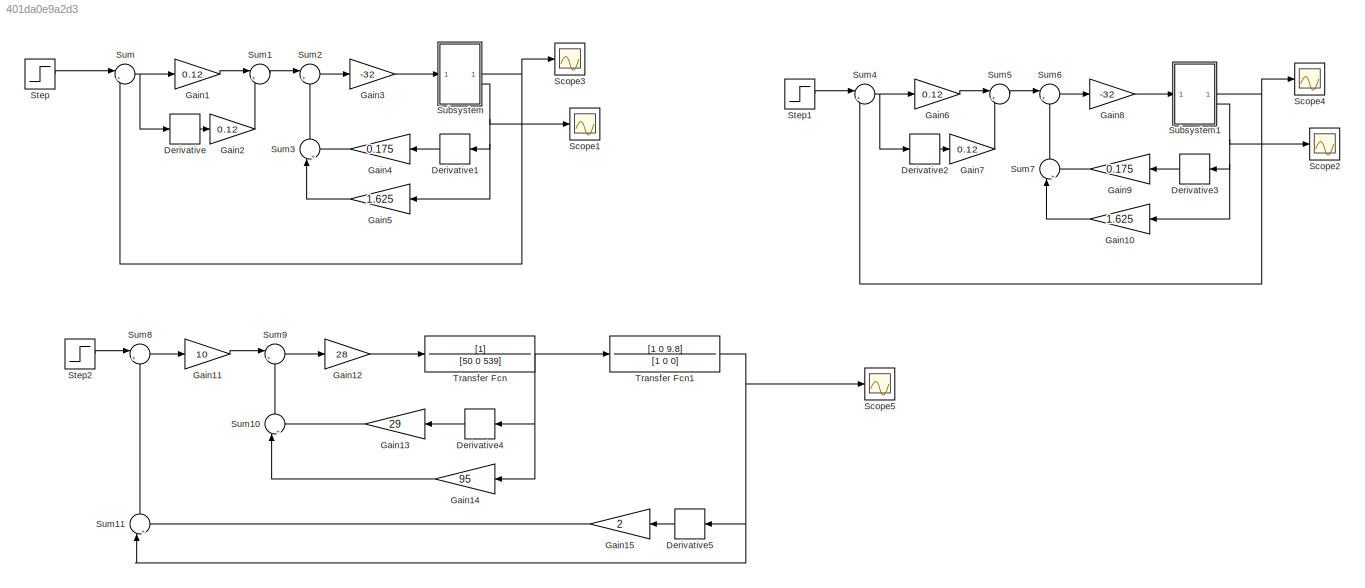
MODEL slx_401da0e9a2d3
KIND model
CONFIG AbsTol = auto
CONFIG EnableMultiTasking = off
CONFIG FixedStep = auto
CONFIG MaxStep = auto
CONFIG MinStep = auto
CONFIG RelTol = 1e-3
CONFIG SampleTimeConstraint = Unconstrained
CONFIG SolverName = VariableStepAuto
CONFIG StartTime = 0.0
CONFIG StopTime = 10.0
BLOCK [Derivative] Derivative
BLOCK [Derivative] Derivative1
BLOCK [Derivative] Derivative2
BLOCK [Derivative] Derivative3
BLOCK [Derivative] Derivative4
BLOCK [Derivative] Derivative5
BLOCK [Gain] Gain1
  Gain = 0.12
BLOCK [Gain] Gain10
  Gain = 1.625
BLOCK [Gain] Gain11
  Gain = 10
BLOCK [Gain] Gain12
  Gain = 28
BLOCK [Gain] Gain13
  Gain = 29
BLOCK [Gain] Gain14
  Gain = 95
BLOCK [Gain] Gain15
  Gain = 2
BLOCK [Gain] Gain2
  Gain = 0.12
BLOCK [Gain] Gain3
  Gain = -32
BLOCK [Gain] Gain4
  Gain = 0.175
BLOCK [Gain] Gain5
  Gain = 1.625
BLOCK [Gain] Gain6
  Gain = 0.12
BLOCK [Gain] Gain7
  Gain = 0.12
BLOCK [Gain] Gain8
  Gain = -32
BLOCK [Gain] Gain9
  Gain = 0.175
BLOCK [Scope] Scope1
  Floating = off
  NumInputPorts = 1
  ScopeSpecificationString = Simulink.scopes.TimeScopeBlockCfg('CurrentConfiguration', extmgr.ConfigurationSet(extmgr.Configuration('Core','General UI',true),extmgr.Configuration('Core','Source UI',true),extmgr.Configuration('Sources','WiredSimulink',true),extmgr.Configuration('Visuals','Time Domain',true,'SerializedDisplays',{struct('MinYLimReal','-0.0067','MaxYLimReal','0.01478','YLabelReal','','MinYLimMag','0.00000','MaxYL...<+1396ch>
BLOCK [Scope] Scope2
  Floating = off
  NumInputPorts = 1
  ScopeSpecificationString = Simulink.scopes.TimeScopeBlockCfg('CurrentConfiguration', extmgr.ConfigurationSet(extmgr.Configuration('Core','General UI',true),extmgr.Configuration('Core','Source UI',true),extmgr.Configuration('Sources','WiredSimulink',true,'DataLoggingVariableName','ScopeData1'),extmgr.Configuration('Visuals','Time Domain',true,'SerializedDisplays',{struct('MinYLimReal','-0.0067','MaxYLimReal','0.01478','YLabe...<+1450ch>
BLOCK [Scope] Scope3
  Floating = off
  NumInputPorts = 1
  ScopeSpecificationString = Simulink.scopes.TimeScopeBlockCfg('CurrentConfiguration', extmgr.ConfigurationSet(extmgr.Configuration('Core','General UI',true),extmgr.Configuration('Core','Source UI',true),extmgr.Configuration('Sources','WiredSimulink',true,'DataLoggingVariableName','ScopeData3'),extmgr.Configuration('Visuals','Time Domain',true,'SerializedDisplays',{struct('MinYLimReal','-0.01796','MaxYLimReal','0.12869','YLab...<+1437ch>
BLOCK [Scope] Scope4
  Floating = off
  NumInputPorts = 1
  ScopeSpecificationString = Simulink.scopes.TimeScopeBlockCfg('CurrentConfiguration', extmgr.ConfigurationSet(extmgr.Configuration('Core','General UI',true),extmgr.Configuration('Core','Source UI',true),extmgr.Configuration('Sources','WiredSimulink',true,'DataLoggingVariableName','ScopeData2'),extmgr.Configuration('Visuals','Time Domain',true,'SerializedDisplays',{struct('MinYLimReal','-0.01796','MaxYLimReal','0.12869','YLab...<+1464ch>
BLOCK [Scope] Scope5
  Floating = off
  NumInputPorts = 1
  ScopeSpecificationString = Simulink.scopes.TimeScopeBlockCfg('CurrentConfiguration', extmgr.ConfigurationSet(extmgr.Configuration('Core','General UI',true),extmgr.Configuration('Core','Source UI',true),extmgr.Configuration('Sources','WiredSimulink',true,'DataLoggingVariableName','ScopeData1'),extmgr.Configuration('Visuals','Time Domain',true,'SerializedDisplays',{struct('MinYLimReal','-0.01247','MaxYLimReal','0.11226','YLab...<+1477ch>
BLOCK [Step] Step
  After = 0.1
  SampleTime = 0
BLOCK [Step] Step1
  After = 0.1
  SampleTime = 0
BLOCK [Step] Step2
  After = 0.1
  SampleTime = 0
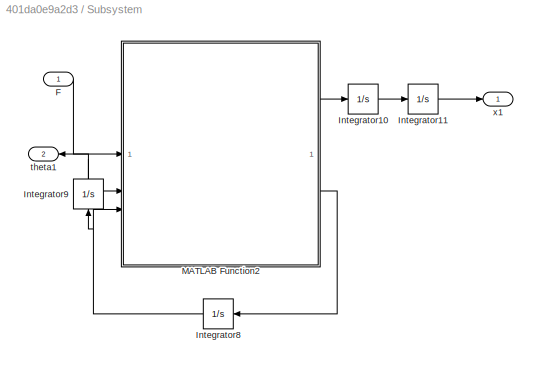
BLOCK [SubSystem] Subsystem
BLOCK [Inport] Subsystem/F
BLOCK [Integrator] Subsystem/Integrator10
BLOCK [Integrator] Subsystem/Integrator11
BLOCK [Integrator] Subsystem/Integrator8
BLOCK [Integrator] Subsystem/Integrator9
  NameLocation = left
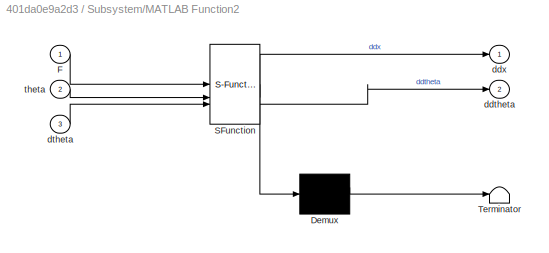
BLOCK [SubSystem] Subsystem/MATLAB Function2
  ErrorFcn = Stateflow.Translate.translate
  PermitHierarchicalResolution = ExplicitOnly
  SFBlockType = MATLAB Function
  TreatAsAtomicUnit = on
BLOCK [Demux] Subsystem/MATLAB Function2/ Demux 
  Outputs = 1
BLOCK [S-Function] Subsystem/MATLAB Function2/ SFunction 
  EnableBusSupport = on
  FunctionName = sf_sfun
  PortCounts = [3 3]
  SFcnIsStateOwnerBlock = off
  SFunctionDeploymentMode = off
  Tag = Stateflow S-Function 3
BLOCK [Terminator] Subsystem/MATLAB Function2/ Terminator 
BLOCK [Inport] Subsystem/MATLAB Function2/F
BLOCK [Outport] Subsystem/MATLAB Function2/ddtheta
  Port = 2
BLOCK [Outport] Subsystem/MATLAB Function2/ddx
BLOCK [Inport] Subsystem/MATLAB Function2/dtheta
  Port = 3
BLOCK [Inport] Subsystem/MATLAB Function2/theta
  Port = 2
BLOCK [Outport] Subsystem/theta1
  Port = 2
BLOCK [Outport] Subsystem/x1
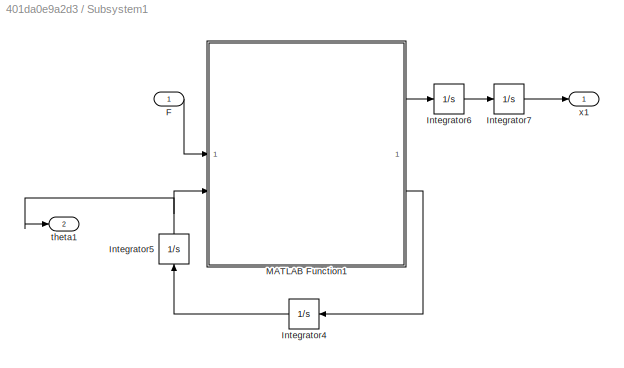
BLOCK [SubSystem] Subsystem1
BLOCK [Inport] Subsystem1/F
BLOCK [Integrator] Subsystem1/Integrator4
BLOCK [Integrator] Subsystem1/Integrator5
  NameLocation = left
BLOCK [Integrator] Subsystem1/Integrator6
BLOCK [Integrator] Subsystem1/Integrator7
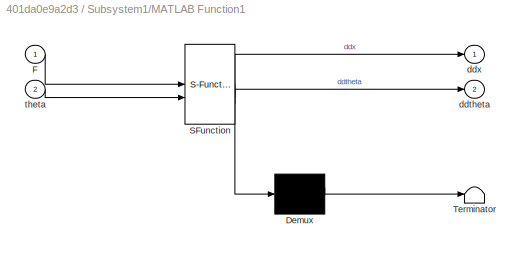
BLOCK [SubSystem] Subsystem1/MATLAB Function1
  ErrorFcn = Stateflow.Translate.translate
  PermitHierarchicalResolution = ExplicitOnly
  SFBlockType = MATLAB Function
  TreatAsAtomicUnit = on
BLOCK [Demux] Subsystem1/MATLAB Function1/ Demux 
  Outputs = 1
BLOCK [S-Function] Subsystem1/MATLAB Function1/ SFunction 
  EnableBusSupport = on
  FunctionName = sf_sfun
  PortCounts = [2 3]
  SFcnIsStateOwnerBlock = off
  SFunctionDeploymentMode = off
  Tag = Stateflow S-Function 1
BLOCK [Terminator] Subsystem1/MATLAB Function1/ Terminator 
BLOCK [Inport] Subsystem1/MATLAB Function1/F
BLOCK [Outport] Subsystem1/MATLAB Function1/ddtheta
  Port = 2
BLOCK [Outport] Subsystem1/MATLAB Function1/ddx
BLOCK [Inport] Subsystem1/MATLAB Function1/theta
  Port = 2
BLOCK [Outport] Subsystem1/theta1
  Port = 2
BLOCK [Outport] Subsystem1/x1
BLOCK [Sum] Sum
  Inputs = |+-
BLOCK [Sum] Sum1
  Inputs = |++
BLOCK [Sum] Sum10
  Inputs = |++
  NameLocation = right
BLOCK [Sum] Sum11
  Inputs = |++
  NameLocation = right
BLOCK [Sum] Sum2
  Inputs = |+-
BLOCK [Sum] Sum3
  Inputs = |++
  NameLocation = right
BLOCK [Sum] Sum4
  Inputs = |+-
BLOCK [Sum] Sum5
  Inputs = |++
BLOCK [Sum] Sum6
  Inputs = |+-
BLOCK [Sum] Sum7
  Inputs = |++
  NameLocation = right
BLOCK [Sum] Sum8
  Inputs = |+-
BLOCK [Sum] Sum9
  Inputs = |+-
BLOCK [TransferFcn] Transfer Fcn
  Denominator = [50 0 539]
BLOCK [TransferFcn] Transfer Fcn1
  Denominator = [1 0 0]
  Numerator = [1 0 9.8]
LINE Derivative1:1 -> Gain4:1
LINE Derivative2:1 -> Gain7:1
LINE Derivative3:1 -> Gain9:1
LINE Derivative4:1 -> Gain13:1
LINE Derivative5:1 -> Gain15:1
LINE Derivative:1 -> Gain2:1
LINE Gain10:1 -> Sum7:1
LINE Gain11:1 -> Sum9:1
LINE Gain12:1 -> Transfer Fcn:1
LINE Gain13:1 -> Sum10:2
LINE Gain14:1 -> Sum10:1
LINE Gain15:1 -> Sum11:2
LINE Gain1:1 -> Sum1:1
LINE Gain2:1 -> Sum1:2
LINE Gain3:1 -> Subsystem:1
LINE Gain4:1 -> Sum3:2
LINE Gain5:1 -> Sum3:1
LINE Gain6:1 -> Sum5:1
LINE Gain7:1 -> Sum5:2
LINE Gain8:1 -> Subsystem1:1
LINE Gain9:1 -> Sum7:2
LINE Step1:1 -> Sum4:1
LINE Step2:1 -> Sum8:1
LINE Step:1 -> Sum:1
LINE Subsystem/F:1 -> Subsystem/MATLAB Function2:1
LINE Subsystem/Integrator10:1 -> Subsystem/Integrator11:1
LINE Subsystem/Integrator11:1 -> Subsystem/x1:1
NET Subsystem/Integrator8:1 -> Subsystem/Integrator9:1, Subsystem/MATLAB Function2:3
NET Subsystem/Integrator9:1 -> Subsystem/MATLAB Function2:2, Subsystem/theta1:1
LINE Subsystem/MATLAB Function2:1 -> Subsystem/Integrator10:1
LINE Subsystem/MATLAB Function2:2 -> Subsystem/Integrator8:1
LINE Subsystem1/F:1 -> Subsystem1/MATLAB Function1:1
LINE Subsystem1/Integrator4:1 -> Subsystem1/Integrator5:1
NET Subsystem1/Integrator5:1 -> Subsystem1/MATLAB Function1:2, Subsystem1/theta1:1
LINE Subsystem1/Integrator6:1 -> Subsystem1/Integrator7:1
LINE Subsystem1/Integrator7:1 -> Subsystem1/x1:1
LINE Subsystem1/MATLAB Function1:1 -> Subsystem1/Integrator6:1
LINE Subsystem1/MATLAB Function1:2 -> Subsystem1/Integrator4:1
NET Subsystem1:1 -> Scope4:1, Sum4:2
NET Subsystem1:2 -> Derivative3:1, Gain10:1, Scope2:1
NET Subsystem:1 -> Scope3:1, Sum:2
NET Subsystem:2 -> Derivative1:1, Gain5:1, Scope1:1
LINE Sum10:1 -> Sum9:2
LINE Sum11:1 -> Sum8:2
LINE Sum1:1 -> Sum2:1
LINE Sum2:1 -> Gain3:1
LINE Sum3:1 -> Sum2:2
NET Sum4:1 -> Derivative2:1, Gain6:1
LINE Sum5:1 -> Sum6:1
LINE Sum6:1 -> Gain8:1
LINE Sum7:1 -> Sum6:2
LINE Sum8:1 -> Gain11:1
LINE Sum9:1 -> Gain12:1
NET Sum:1 -> Derivative:1, Gain1:1
NET Transfer Fcn1:1 -> Derivative5:1, Scope5:1, Sum11:1
NET Transfer Fcn:1 -> Derivative4:1, Gain14:1, Transfer Fcn1:1
note: NET lines group one-source signal fan-out (src -> all destinations, sorted); 1:1 wires keep LINE
CHART Subsystem1/MATLAB Function1 states=1 transitions=1
  STATE_LABEL 'eML_blk_kernel()'
  STATE_LABEL 'SCRIPT:\nfunction [ddx,ddtheta] = fcn(F,theta)\n\nddx = -6*theta + 0.8*F;\nddtheta = 40*theta-2.0*F;'
CHART Subsystem/MATLAB Function2 states=1 transitions=1
  STATE_LABEL 'eML_blk_kernel()'
  STATE_LABEL 'SCRIPT:\nfunction [ddx,ddtheta] = fcn(F,theta,dtheta)\n\nddx = 0.12*F + 0.036*sin(theta)*dtheta^2 - 0.9*sin(theta)*cos(theta);\nddx = ddx / ( 0.24 - 0.09*cos(theta)^2 );\n\nddtheta = 0.3*cos(theta)*F + 0.09*sin(theta)*cos(theta)*dtheta^2 - 6*sin(theta);\nddtheta = ddtheta / ( -0.24 + 0.09*cos(theta)^2 );'
CHART  states=0 transitions=0
CHART  states=0 transitions=0
